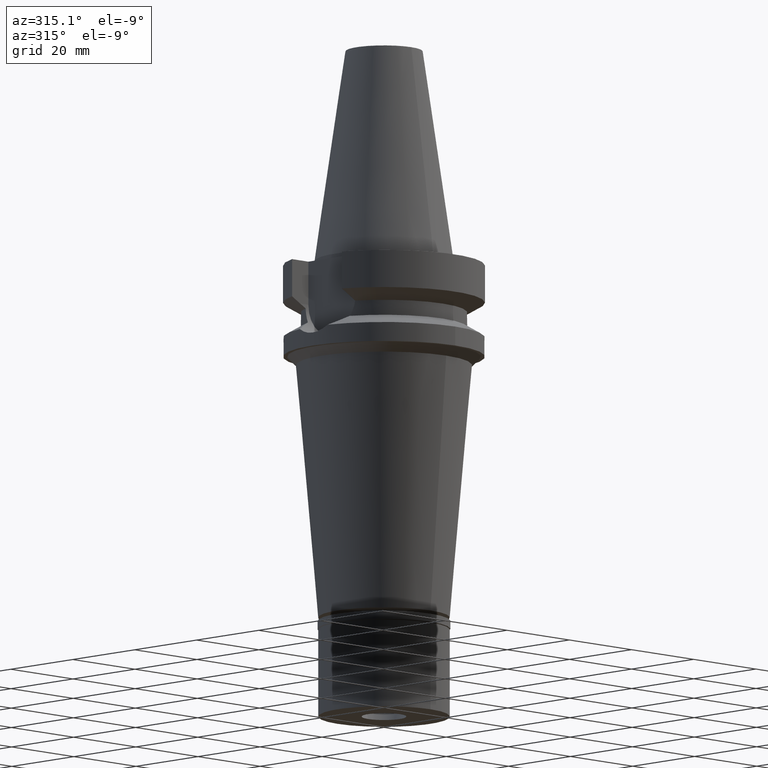
[diagram: clean part render]
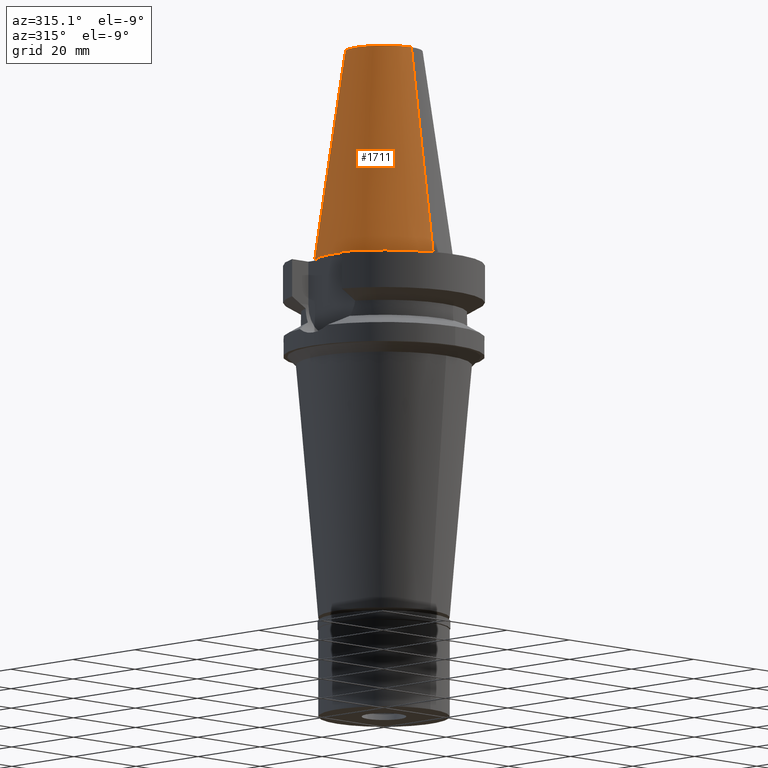
[diagram: same view with one face highlighted and labeled with its STEP entity id]
A machine part, auxiliary view. The second image highlights one B-rep face of the part: STEP entity #1711.
In plain terms, the highlighted conical surface has half-angle 8.297 deg.
Its self-contained STEP definition (entity closure, byte-faithful):
#37 = VERTEX_POINT ( 'NONE', #2790 ) ;
#85 = CARTESIAN_POINT ( 'NONE',  ( 0.0000000000000000000, 0.0000000000000000000, -3.410605131648000255E-13 ) ) ;
#151 = AXIS2_PLACEMENT_3D ( 'NONE', #2346, #948, #235 ) ;
#235 = DIRECTION ( 'NONE',  ( 0.0000000000000000000, -1.000000000000000000, 0.0000000000000000000 ) ) ;
#236 = ORIENTED_EDGE ( 'NONE', *, *, #2292, .T. ) ;
#330 = EDGE_CURVE ( 'NONE', #37, #1367, #1300, .T. ) ;
#346 = DIRECTION ( 'NONE',  ( 0.0000000000000000000, 0.0000000000000000000, -1.000000000000000000 ) ) ;
#451 = VECTOR ( 'NONE', #1110, 1000.000000000000114 ) ;
#597 = CARTESIAN_POINT ( 'NONE',  ( 0.0000000000000000000, 15.87500000000000000, -1.136868377215999875E-13 ) ) ;
#657 = AXIS2_PLACEMENT_3D ( 'NONE', #1690, #1212, #2629 ) ;
#724 = CARTESIAN_POINT ( 'NONE',  ( 0.0000000000000000000, 8.816791732783000768, 48.39999999999999858 ) ) ;
#746 = CARTESIAN_POINT ( 'NONE',  ( 0.0000000000000000000, -8.816791732783000768, 48.39999999999999858 ) ) ;
#875 = EDGE_LOOP ( 'NONE', ( #2775, #1352, #236, #1053 ) ) ;
#948 = DIRECTION ( 'NONE',  ( 0.0000000000000000000, 0.0000000000000000000, -1.000000000000000000 ) ) ;
#990 = VECTOR ( 'NONE', #1794, 1000.000000000000114 ) ;
#1053 = ORIENTED_EDGE ( 'NONE', *, *, #2088, .T. ) ;
#1110 = DIRECTION ( 'NONE',  ( 0.0000000000000000000, -0.1443043893539925626, -0.9895333461855498891 ) ) ;
#1212 = DIRECTION ( 'NONE',  ( 0.0000000000000000000, 0.0000000000000000000, -1.000000000000000000 ) ) ;
#1300 = CIRCLE ( 'NONE', #2076, 15.87500000000000000 ) ;
#1315 = CARTESIAN_POINT ( 'NONE',  ( 0.0000000000000000000, -8.816791732783000768, 48.39999999999999858 ) ) ;
#1352 = ORIENTED_EDGE ( 'NONE', *, *, #2142, .F. ) ;
#1367 = VERTEX_POINT ( 'NONE', #597 ) ;
#1690 = CARTESIAN_POINT ( 'NONE',  ( 0.0000000000000000000, 0.0000000000000000000, 24.19999999999999929 ) ) ;
#1711 = ADVANCED_FACE ( 'NONE', ( #2848 ), #2126, .T. ) ;
#1794 = DIRECTION ( 'NONE',  ( 0.0000000000000000000, 0.1443043893539925626, -0.9895333461855498891 ) ) ;
#2014 = LINE ( 'NONE', #1315, #451 ) ;
#2073 = CIRCLE ( 'NONE', #151, 8.816791732783000768 ) ;
#2076 = AXIS2_PLACEMENT_3D ( 'NONE', #85, #346, #2881 ) ;
#2088 = EDGE_CURVE ( 'NONE', #2172, #1367, #2237, .T. ) ;
#2126 = CONICAL_SURFACE ( 'NONE', #657, 12.34589586639000025, 0.1448099680379422438 ) ;
#2142 = EDGE_CURVE ( 'NONE', #2793, #37, #2014, .T. ) ;
#2172 = VERTEX_POINT ( 'NONE', #724 ) ;
#2237 = LINE ( 'NONE', #2471, #990 ) ;
#2292 = EDGE_CURVE ( 'NONE', #2793, #2172, #2073, .T. ) ;
#2346 = CARTESIAN_POINT ( 'NONE',  ( 0.0000000000000000000, 0.0000000000000000000, 48.39999999999999858 ) ) ;
#2471 = CARTESIAN_POINT ( 'NONE',  ( 0.0000000000000000000, 8.816791732783000768, 48.39999999999999858 ) ) ;
#2629 = DIRECTION ( 'NONE',  ( 0.0000000000000000000, -1.000000000000000000, 0.0000000000000000000 ) ) ;
#2775 = ORIENTED_EDGE ( 'NONE', *, *, #330, .F. ) ;
#2790 = CARTESIAN_POINT ( 'NONE',  ( 0.0000000000000000000, -15.87500000000000000, -3.410605131648000255E-13 ) ) ;
#2793 = VERTEX_POINT ( 'NONE', #746 ) ;
#2848 = FACE_OUTER_BOUND ( 'NONE', #875, .T. ) ;
#2881 = DIRECTION ( 'NONE',  ( 0.0000000000000000000, -1.000000000000000000, 0.0000000000000000000 ) ) ;